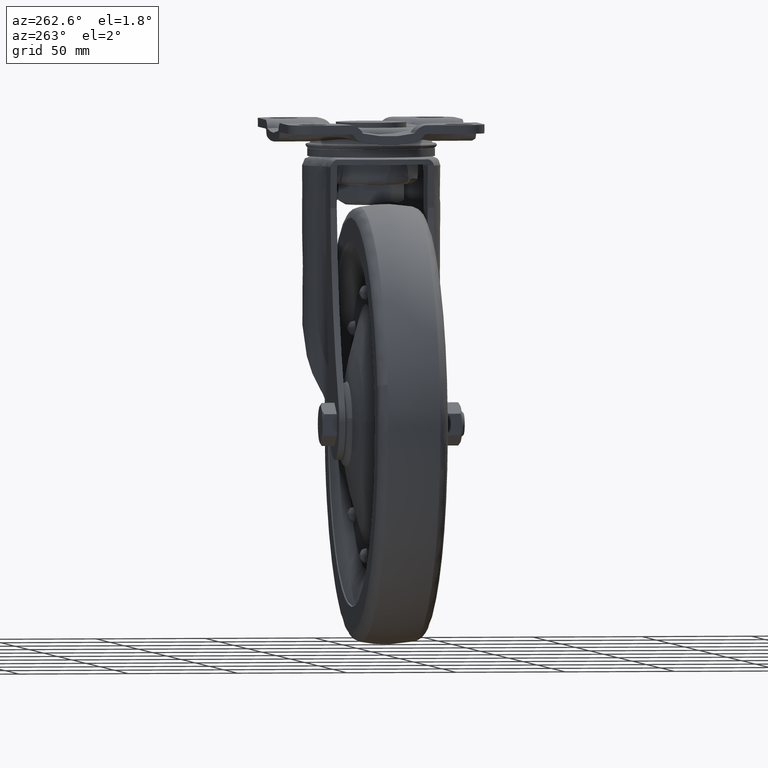
[diagram: clean part render]
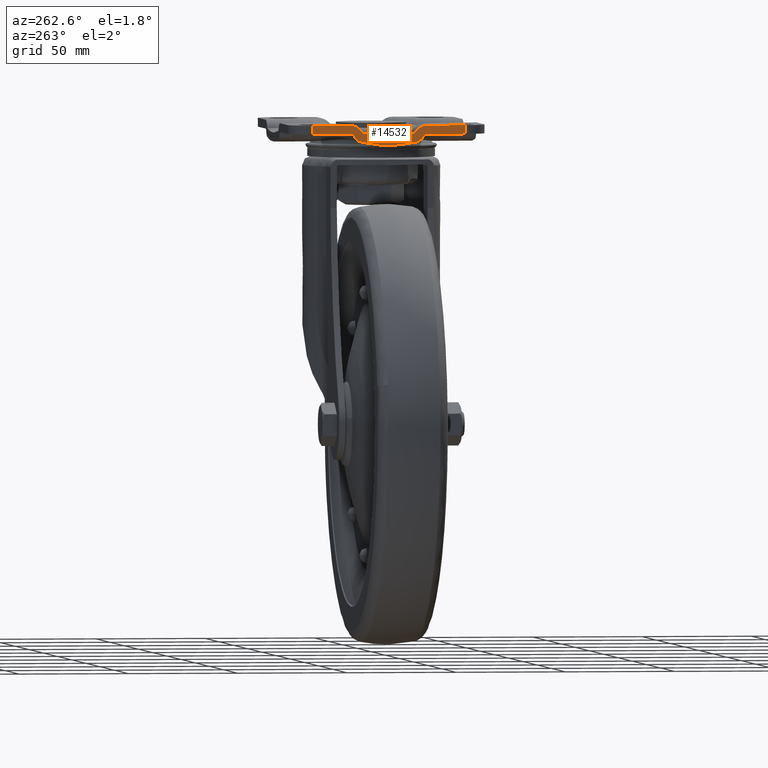
[diagram: same view with one face highlighted and labeled with its STEP entity id]
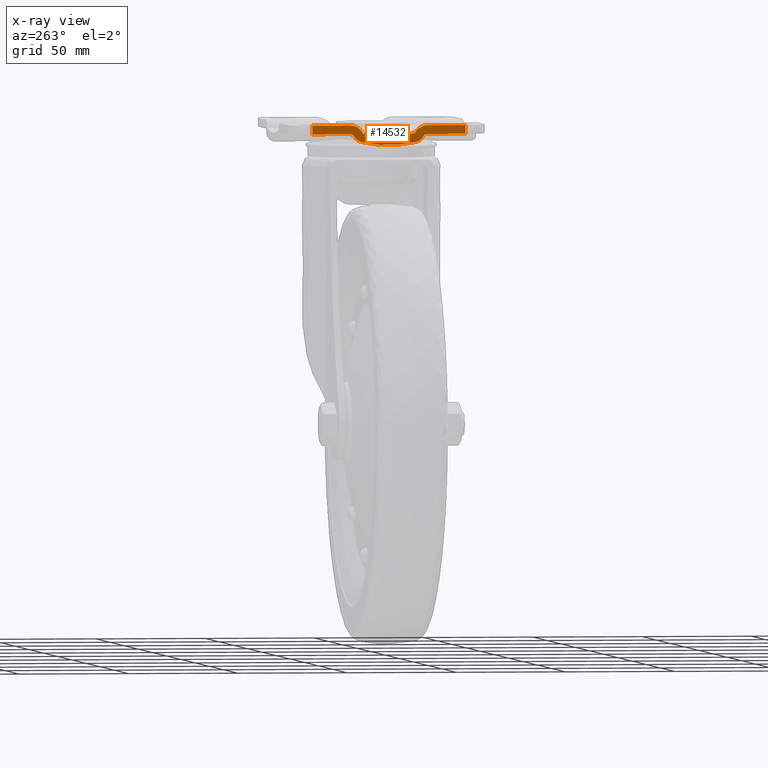
[diagram: x-ray of the same camera — body ghosted, the highlighted face saturated]
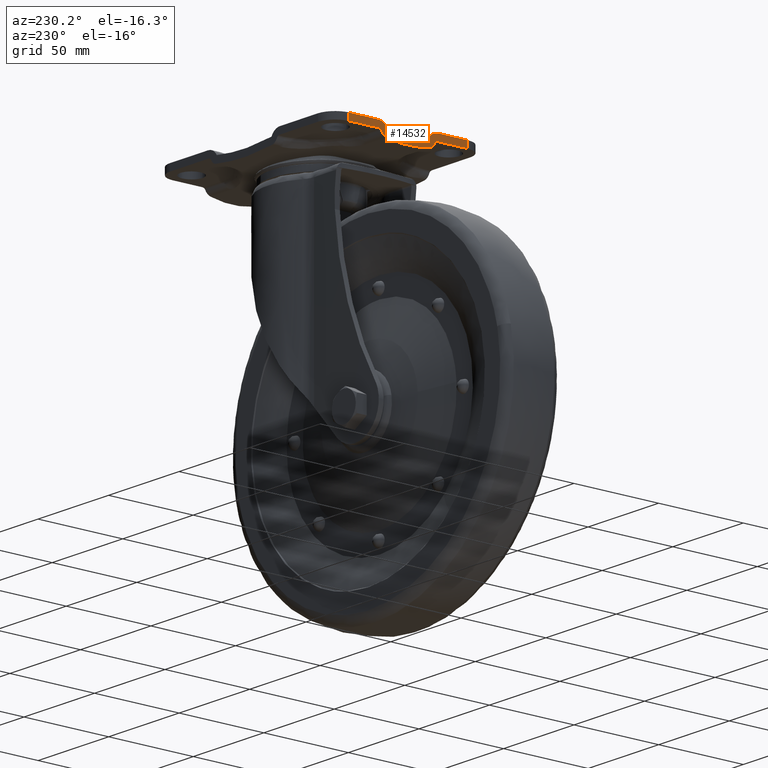
[diagram: same view with one face highlighted and labeled with its STEP entity id]
A machine part, auxiliary view. The second image highlights one B-rep face of the part: STEP entity #14532.
The next image is the same camera in x-ray: the body ghosted, the highlighted face saturated — about 0% of this face is hidden behind the body in this view.
A second angle (auxiliary view) of the same face is appended — the face is thin or edge-on in the first view.
In plain terms, the highlighted face is a freeform B-spline surface patch.
Its self-contained STEP definition (entity closure, byte-faithful):
#12648=CARTESIAN_POINT('',(-62.500000000000000,17.778358479652951,0.270766999999808));
#12649=VERTEX_POINT('',#12648);
#12655=CARTESIAN_POINT('',(-62.500000000000000,11.833141814256260,-3.387566995680325));
#12656=VERTEX_POINT('',#12655);
#12657=CARTESIAN_POINT('',(-62.500000000000000,17.778358479652951,0.270766999999810));
#12658=CARTESIAN_POINT('',(-62.500000000000000,13.680189181124270,0.270766999999809));
#12659=CARTESIAN_POINT('',(-62.500000000000000,11.833141814256271,-3.387566995680326));
#12667=(BOUNDED_CURVE()B_SPLINE_CURVE(2,(#12657,#12658,#12659),.UNSPECIFIED.,.F.,.U.)CURVE()GEOMETRIC_REPRESENTATION_ITEM()QUASI_UNIFORM_CURVE()RATIONAL_B_SPLINE_CURVE((1.0,0.851674997064382,1.0))REPRESENTATION_ITEM(''));
#12668=EDGE_CURVE('',#12649,#12656,#12667,.T.);
#12783=CARTESIAN_POINT('',(-62.500000000000000,-11.833141855906341,-3.387566748767905));
#12784=VERTEX_POINT('',#12783);
#12790=CARTESIAN_POINT('',(-62.500000000000000,-17.778358396640002,0.270766999999808));
#12791=VERTEX_POINT('',#12790);
#12792=CARTESIAN_POINT('',(-62.500000000000000,-11.833141855906341,-3.387566748767906));
#12793=CARTESIAN_POINT('',(-62.500000000000000,-13.680189288776637,0.270766999999810));
#12794=CARTESIAN_POINT('',(-62.500000000000000,-17.778358396640002,0.270766999999810));
#12802=(BOUNDED_CURVE()B_SPLINE_CURVE(2,(#12792,#12793,#12794),.UNSPECIFIED.,.F.,.U.)CURVE()GEOMETRIC_REPRESENTATION_ITEM()QUASI_UNIFORM_CURVE()RATIONAL_B_SPLINE_CURVE((1.0,0.851675007947035,1.0))REPRESENTATION_ITEM(''));
#12803=EDGE_CURVE('',#12784,#12791,#12802,.T.);
#12932=CARTESIAN_POINT('',(-62.500000000000000,-11.833141855906311,-3.387566748767869));
#12933=CARTESIAN_POINT('',(-62.500000000000000,-0.000000050089064,-6.192492302581441));
#12934=CARTESIAN_POINT('',(-62.500000000000000,11.833141814256271,-3.387566995680290));
#12942=(BOUNDED_CURVE()B_SPLINE_CURVE(2,(#12932,#12933,#12934),.UNSPECIFIED.,.F.,.U.)CURVE()GEOMETRIC_REPRESENTATION_ITEM()QUASI_UNIFORM_CURVE()RATIONAL_B_SPLINE_CURVE((1.0,0.973037133028716,1.0))REPRESENTATION_ITEM(''));
#12943=EDGE_CURVE('',#12784,#12656,#12942,.T.);
#13009=CARTESIAN_POINT('',(-62.500000000000000,-35.0,0.270766999999839));
#13010=VERTEX_POINT('',#13009);
#13011=CARTESIAN_POINT('',(-62.500000000000000,-17.778358396640002,0.270766999999808));
#13012=CARTESIAN_POINT('',(-62.500000000000000,-35.0,0.270766999999839));
#13013=QUASI_UNIFORM_CURVE('',1,(#13011,#13012),.UNSPECIFIED.,.F.,.U.);
#13014=EDGE_CURVE('',#12791,#13010,#13013,.T.);
#13169=CARTESIAN_POINT('',(-62.500000000000000,35.0,0.270766999999839));
#13170=VERTEX_POINT('',#13169);
#13184=CARTESIAN_POINT('',(-62.500000000000000,35.0,0.270766999999839));
#13185=CARTESIAN_POINT('',(-62.500000000000000,17.778358479652951,0.270766999999808));
#13186=QUASI_UNIFORM_CURVE('',1,(#13184,#13185),.UNSPECIFIED.,.F.,.U.);
#13187=EDGE_CURVE('',#13170,#12649,#13186,.T.);
#13539=CARTESIAN_POINT('',(-62.500000000000000,35.0,-3.729233000000165));
#13540=VERTEX_POINT('',#13539);
#13569=CARTESIAN_POINT('',(-62.500000000000000,17.522904981496250,-3.729233000000195));
#13570=VERTEX_POINT('',#13569);
#13576=CARTESIAN_POINT('',(-62.500000000000000,17.522904981496250,-3.729233000000195));
#13577=CARTESIAN_POINT('',(-62.500000000000000,35.0,-3.729233000000165));
#13578=QUASI_UNIFORM_CURVE('',1,(#13576,#13577),.UNSPECIFIED.,.F.,.U.);
#13579=EDGE_CURVE('',#13570,#13540,#13578,.T.);
#14053=CARTESIAN_POINT('',(-62.500000000000000,-35.0,-3.729233000000165));
#14054=VERTEX_POINT('',#14053);
#14068=CARTESIAN_POINT('',(-62.500000000000000,-17.522904981496250,-3.729233000000195));
#14069=VERTEX_POINT('',#14068);
#14070=CARTESIAN_POINT('',(-62.500000000000000,-35.0,-3.729233000000165));
#14071=CARTESIAN_POINT('',(-62.500000000000000,-17.522904981496250,-3.729233000000195));
#14072=QUASI_UNIFORM_CURVE('',1,(#14070,#14071),.UNSPECIFIED.,.F.,.U.);
#14073=EDGE_CURVE('',#14054,#14069,#14072,.T.);
#14302=CARTESIAN_POINT('',(-62.500000000000000,-12.722865446894360,-7.287496289076270));
#14303=VERTEX_POINT('',#14302);
#14309=CARTESIAN_POINT('',(-62.500000000000000,12.722865221488281,-7.287496578755770));
#14310=VERTEX_POINT('',#14309);
#14311=CARTESIAN_POINT('',(-62.500000000000000,-12.722865446894341,-7.287496289076232));
#14312=CARTESIAN_POINT('',(-62.500000000000000,-0.000000146942412,-10.295115294686168));
#14313=CARTESIAN_POINT('',(-62.500000000000000,12.722865221488281,-7.287496578755735));
#14321=(BOUNDED_CURVE()B_SPLINE_CURVE(2,(#14311,#14312,#14313),.UNSPECIFIED.,.F.,.U.)CURVE()GEOMETRIC_REPRESENTATION_ITEM()QUASI_UNIFORM_CURVE()RATIONAL_B_SPLINE_CURVE((1.0,0.973177829177978,1.0))REPRESENTATION_ITEM(''));
#14322=EDGE_CURVE('',#14303,#14310,#14321,.T.);
#14348=CARTESIAN_POINT('',(-62.500000000000000,-15.717081552112949,-4.869580894849350));
#14349=VERTEX_POINT('',#14348);
#14350=CARTESIAN_POINT('',(-62.500000000000000,-15.717081552112941,-4.869580894849344));
#14351=CARTESIAN_POINT('',(-62.500000000000000,-16.259937765217991,-3.729233000000189));
#14352=CARTESIAN_POINT('',(-62.500000000000000,-17.522904981496250,-3.729233000000190));
#14360=(BOUNDED_CURVE()B_SPLINE_CURVE(2,(#14350,#14351,#14352),.UNSPECIFIED.,.F.,.U.)CURVE()GEOMETRIC_REPRESENTATION_ITEM()QUASI_UNIFORM_CURVE()RATIONAL_B_SPLINE_CURVE((1.0,0.845525296066127,1.0))REPRESENTATION_ITEM(''));
#14361=EDGE_CURVE('',#14349,#14069,#14360,.T.);
#14388=CARTESIAN_POINT('',(-62.500000000000000,-15.717081552112930,-4.869580894849340));
#14389=CARTESIAN_POINT('',(-62.499999999999986,-14.799769698450875,-6.796526955317996));
#14390=CARTESIAN_POINT('',(-62.500000000000000,-12.722865446894360,-7.287496289076258));
#14398=(BOUNDED_CURVE()B_SPLINE_CURVE(2,(#14388,#14389,#14390),.UNSPECIFIED.,.F.,.U.)CURVE()GEOMETRIC_REPRESENTATION_ITEM()QUASI_UNIFORM_CURVE()RATIONAL_B_SPLINE_CURVE((1.0,0.901669502198940,1.0))REPRESENTATION_ITEM(''));
#14399=EDGE_CURVE('',#14349,#14303,#14398,.T.);
#14420=CARTESIAN_POINT('',(-62.500000000000000,15.717081512793751,-4.869580977444870));
#14421=VERTEX_POINT('',#14420);
#14422=CARTESIAN_POINT('',(-62.500000000000000,17.522904981496250,-3.729233000000190));
#14423=CARTESIAN_POINT('',(-62.500000000000000,16.259937701240364,-3.729233000000191));
#14424=CARTESIAN_POINT('',(-62.500000000000000,15.717081512793790,-4.869580977444889));
#14432=(BOUNDED_CURVE()B_SPLINE_CURVE(2,(#14422,#14423,#14424),.UNSPECIFIED.,.F.,.U.)CURVE()GEOMETRIC_REPRESENTATION_ITEM()QUASI_UNIFORM_CURVE()RATIONAL_B_SPLINE_CURVE((1.0,0.845525283855442,1.0))REPRESENTATION_ITEM(''));
#14433=EDGE_CURVE('',#13570,#14421,#14432,.T.);
#14460=CARTESIAN_POINT('',(-62.500000000000000,12.722865221488281,-7.287496578755771));
#14461=CARTESIAN_POINT('',(-62.499999999999993,14.799769666680762,-6.796527249153372));
#14462=CARTESIAN_POINT('',(-62.500000000000000,15.717081512793770,-4.869580977444877));
#14470=(BOUNDED_CURVE()B_SPLINE_CURVE(2,(#14460,#14461,#14462),.UNSPECIFIED.,.F.,.U.)CURVE()GEOMETRIC_REPRESENTATION_ITEM()QUASI_UNIFORM_CURVE()RATIONAL_B_SPLINE_CURVE((1.0,0.901669487386876,1.0))REPRESENTATION_ITEM(''));
#14471=EDGE_CURVE('',#14310,#14421,#14470,.T.);
#14492=CARTESIAN_POINT('',(-62.500000000000000,35.0,-3.729233000000165));
#14493=CARTESIAN_POINT('',(-62.500000000000000,35.0,0.270766999999839));
#14494=QUASI_UNIFORM_CURVE('',1,(#14492,#14493),.UNSPECIFIED.,.F.,.U.);
#14495=EDGE_CURVE('',#13540,#13170,#14494,.T.);
#14507=CARTESIAN_POINT('',(-62.500000000000000,38.496499864326417,-9.222493450925766));
#14508=CARTESIAN_POINT('',(-62.500000000000000,-38.496501741872727,-9.222493450925766));
#14509=CARTESIAN_POINT('',(-62.500000000000000,38.496499864326417,0.722396693440847));
#14510=CARTESIAN_POINT('',(-62.500000000000000,-38.496501741872727,0.722396693440847));
#14511=B_SPLINE_SURFACE_WITH_KNOTS('',1,1,((#14507,#14509),(#14508,#14510)),.UNSPECIFIED.,.F.,.F.,.U.,(2,2),(2,2),(0.0,76.993001606199158),(0.0,9.944890144366612),.UNSPECIFIED.);
#14512=ORIENTED_EDGE('',*,*,#12943,.T.);
#14513=ORIENTED_EDGE('',*,*,#12668,.F.);
#14514=ORIENTED_EDGE('',*,*,#13187,.F.);
#14515=ORIENTED_EDGE('',*,*,#14495,.F.);
#14516=ORIENTED_EDGE('',*,*,#13579,.F.);
#14517=ORIENTED_EDGE('',*,*,#14433,.T.);
#14518=ORIENTED_EDGE('',*,*,#14471,.F.);
#14519=ORIENTED_EDGE('',*,*,#14322,.F.);
#14520=ORIENTED_EDGE('',*,*,#14399,.F.);
#14521=ORIENTED_EDGE('',*,*,#14361,.T.);
#14522=ORIENTED_EDGE('',*,*,#14073,.F.);
#14523=CARTESIAN_POINT('',(-62.500000000000000,-35.0,-3.729233000000165));
#14524=CARTESIAN_POINT('',(-62.500000000000000,-35.0,0.270766999999839));
#14525=QUASI_UNIFORM_CURVE('',1,(#14523,#14524),.UNSPECIFIED.,.F.,.U.);
#14526=EDGE_CURVE('',#14054,#13010,#14525,.T.);
#14527=ORIENTED_EDGE('',*,*,#14526,.T.);
#14528=ORIENTED_EDGE('',*,*,#13014,.F.);
#14529=ORIENTED_EDGE('',*,*,#12803,.F.);
#14530=EDGE_LOOP('',(#14512,#14513,#14514,#14515,#14516,#14517,#14518,#14519,#14520,#14521,#14522,#14527,#14528,#14529));
#14531=FACE_OUTER_BOUND('',#14530,.T.);
#14532=ADVANCED_FACE('',(#14531),#14511,.T.);